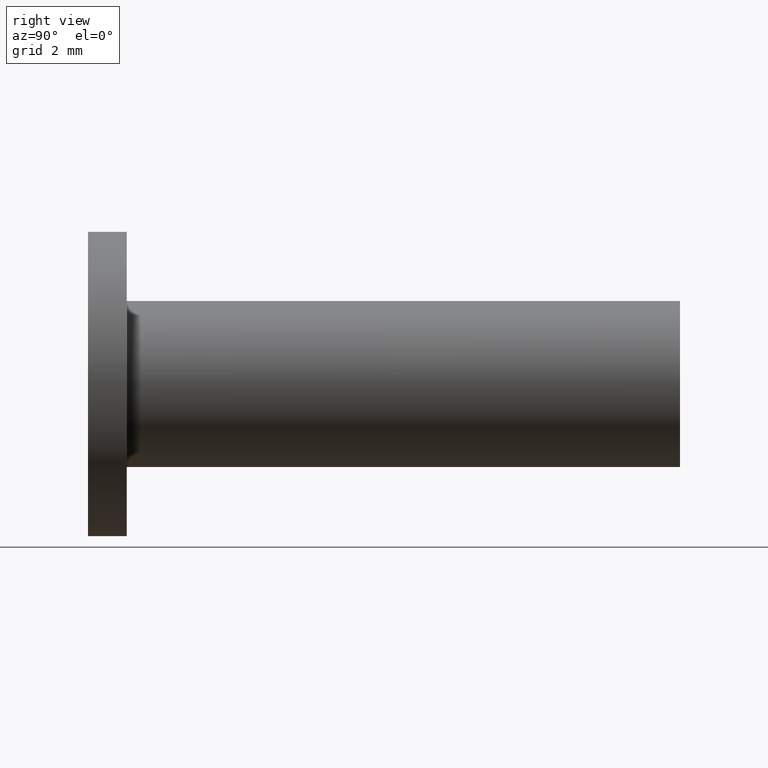
[diagram: clean part render]
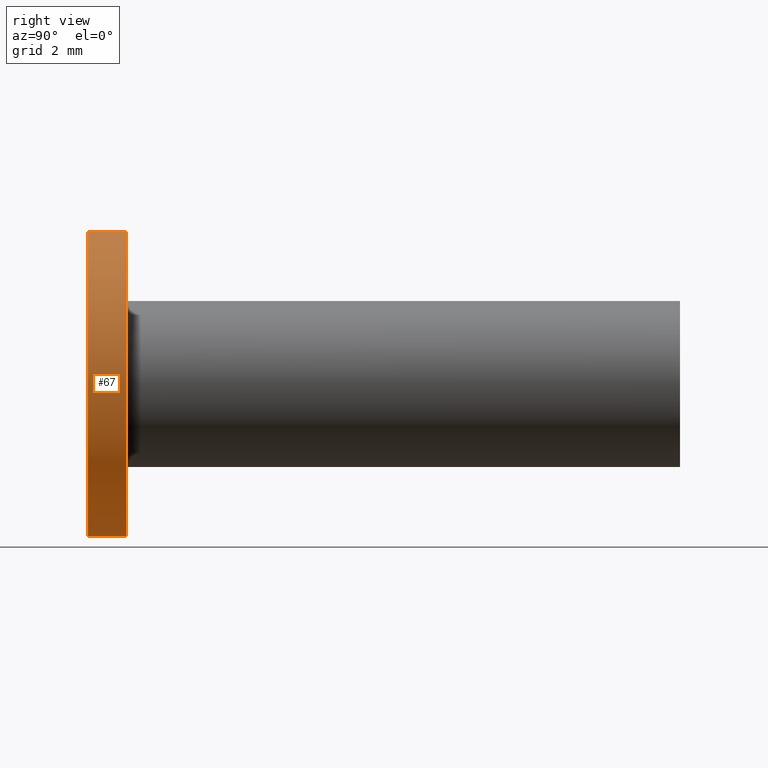
[diagram: same view with one face highlighted and labeled with its STEP entity id]
A machine part, right view. The second image highlights one B-rep face of the part: STEP entity #67.
In plain terms, the highlighted cylindrical surface (partial cylindrical patch) has radius 2.75 mm, axis along (-0, 1, -0).
Its self-contained STEP definition (entity closure, byte-faithful):
#67=ADVANCED_FACE('',(#342),#341,.T.);
#341=CYLINDRICAL_SURFACE('',#521,2.75000000000E+00);
#342=FACE_OUTER_BOUND('',#522,.T.);
#518=CARTESIAN_POINT('',(0.00000000000E+00,0.00000000000E+00,0.00000000000E+00));
#519=DIRECTION('',(-0.00000000000E+00,1.00000000000E+00,-0.00000000000E+00));
#520=DIRECTION('',(-0.00000000000E+00,-0.00000000000E+00,1.00000000000E+00));
#521=AXIS2_PLACEMENT_3D('',#518,#519,#520);
#522=EDGE_LOOP('',(#656,#657,#658,#659));
#656=ORIENTED_EDGE('',*,*,#721,.T.);
#657=ORIENTED_EDGE('',*,*,#730,.F.);
#658=ORIENTED_EDGE('',*,*,#724,.F.);
#659=ORIENTED_EDGE('',*,*,#731,.T.);
#721=EDGE_CURVE('',#1105,#1104,#1112,.T.);
#724=EDGE_CURVE('',#1132,#1133,#1134,.T.);
#730=EDGE_CURVE('',#1133,#1104,#1171,.T.);
#731=EDGE_CURVE('',#1132,#1105,#1177,.T.);
#1104=VERTEX_POINT('',#1415);
#1105=VERTEX_POINT('',#1416);
#1112=CIRCLE('',#1424,2.75000000000E+00);
#1132=VERTEX_POINT('',#1435);
#1133=VERTEX_POINT('',#1436);
#1134=CIRCLE('',#1440,2.75000000000E+00);
#1171=(BOUNDED_CURVE() B_SPLINE_CURVE(1,(#1454,#1455),.UNSPECIFIED.,.F.,.F.) B_SPLINE_CURVE_WITH_KNOTS((2,2),(8.33332935974E-02,9.16666633252E-01),.UNSPECIFIED.) CURVE() GEOMETRIC_REPRESENTATION_ITEM() RATIONAL_B_SPLINE_CURVE((1.00000000000E+00,1.00000000000E+00)) REPRESENTATION_ITEM('') );
#1177=(BOUNDED_CURVE() B_SPLINE_CURVE(1,(#1456,#1457),.UNSPECIFIED.,.F.,.F.) B_SPLINE_CURVE_WITH_KNOTS((2,2),(8.33333333333E-02,9.16666666667E-01),.UNSPECIFIED.) CURVE() GEOMETRIC_REPRESENTATION_ITEM() RATIONAL_B_SPLINE_CURVE((7.50000000000E-01,7.50000000000E-01)) REPRESENTATION_ITEM('') );
#1415=CARTESIAN_POINT('',(1.48029736617E-16,1.77635683940E-14,2.75000000000E+00));
#1416=CARTESIAN_POINT('',(0.00000000000E+00,1.77635683940E-14,-2.75000000000E+00));
#1421=CARTESIAN_POINT('',(0.00000000000E+00,1.77635683940E-14,0.00000000000E+00));
#1422=DIRECTION('',(0.00000000000E+00,-1.00000000000E+00,-0.00000000000E+00));
#1423=DIRECTION('',(-1.22460635382E-16,0.00000000000E+00,-1.00000000000E+00));
#1424=AXIS2_PLACEMENT_3D('',#1421,#1422,#1423);
#1435=CARTESIAN_POINT('',(0.00000000000E+00,-7.00000000000E-01,-2.75000000000E+00));
#1436=CARTESIAN_POINT('',(1.48029736617E-16,-7.00000000000E-01,2.75000000000E+00));
#1437=CARTESIAN_POINT('',(0.00000000000E+00,-7.00000000000E-01,0.00000000000E+00));
#1438=DIRECTION('',(0.00000000000E+00,-1.00000000000E+00,-0.00000000000E+00));
#1439=DIRECTION('',(-1.22460635382E-16,0.00000000000E+00,-1.00000000000E+00));
#1440=AXIS2_PLACEMENT_3D('',#1437,#1438,#1439);
#1454=CARTESIAN_POINT('',(0.00000000000E+00,-7.00000033378E-01,2.75000000000E+00));
#1455=CARTESIAN_POINT('',(0.00000000000E+00,-2.80686960480E-08,2.75000000000E+00));
#1456=CARTESIAN_POINT('',(0.00000000000E+00,-7.00000000000E-01,-2.75000000000E+00));
#1457=CARTESIAN_POINT('',(0.00000000000E+00,1.77820721111E-14,-2.75000000000E+00));